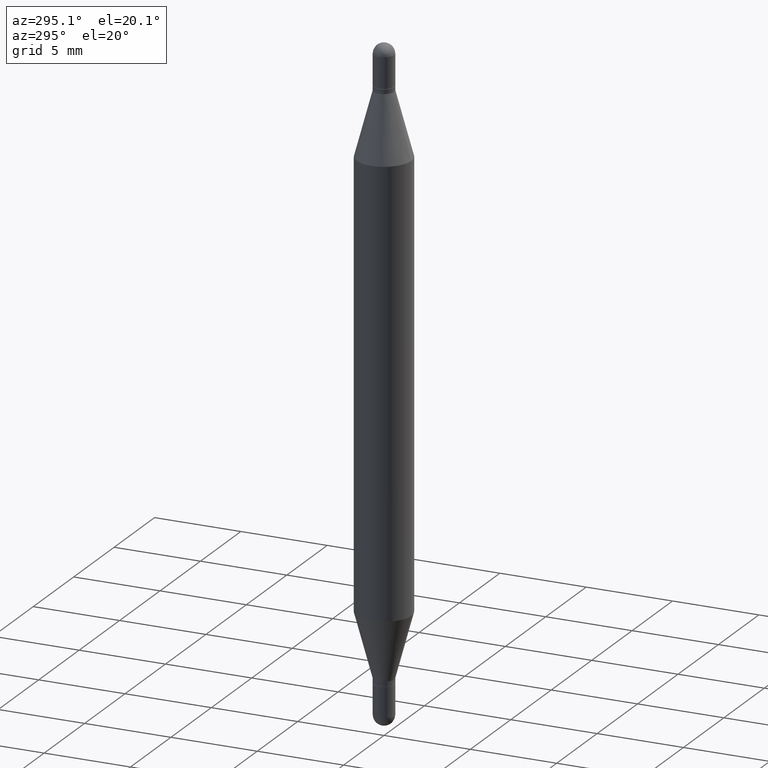
[diagram: clean part render]
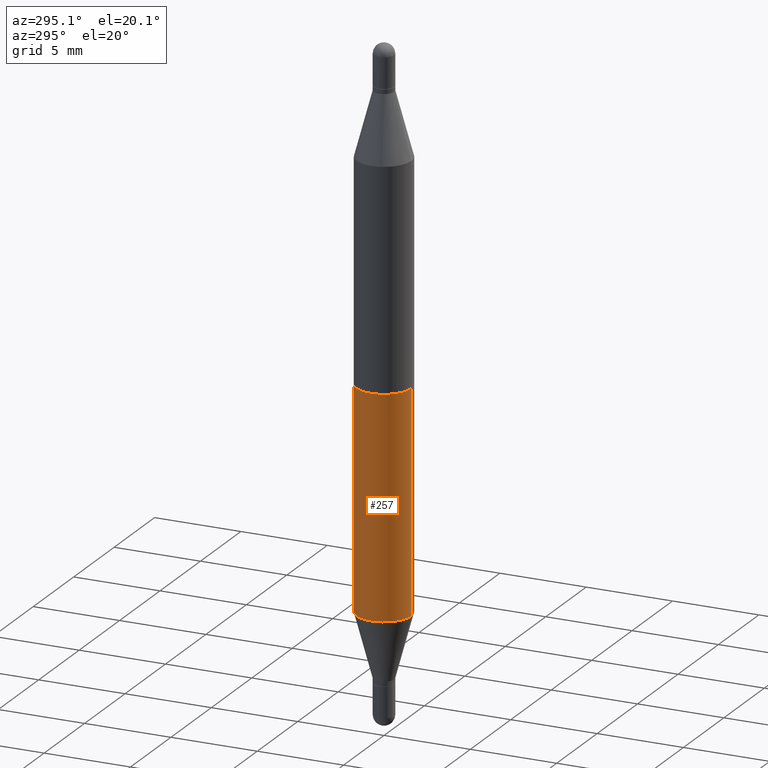
[diagram: same view with one face highlighted and labeled with its STEP entity id]
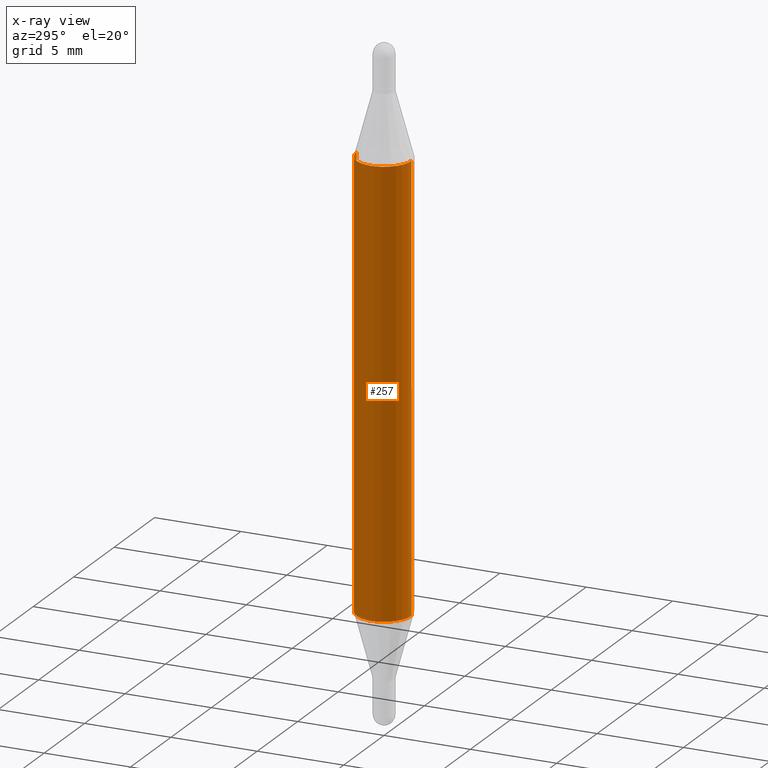
[diagram: x-ray of the same camera — body ghosted, the highlighted face saturated]
A machine part, auxiliary view. The second image highlights one B-rep face of the part: STEP entity #257.
The next image is the same camera in x-ray: the body ghosted, the highlighted face saturated — about 0% of this face is hidden behind the body in this view.
In plain terms, the highlighted cylindrical surface (edge-blend (fillet) strip) has radius 1.5875 mm, axis along (-0, -0, -1).
Its self-contained STEP definition (entity closure, byte-faithful):
#31 = VECTOR ( 'NONE', #339, 39.37007874015748143 ) ;
#46 = DIRECTION ( 'NONE',  ( -6.982962677686265922E-15, -1.000000000000000000, 4.370956789862821150E-15 ) ) ;
#52 = VERTEX_POINT ( 'NONE', #277 ) ;
#93 = VERTEX_POINT ( 'NONE', #431 ) ;
#129 = VECTOR ( 'NONE', #1052, 39.37007874015748143 ) ;
#167 = ORIENTED_EDGE ( 'NONE', *, *, #720, .T. ) ;
#197 = CARTESIAN_POINT ( 'NONE',  ( 3.057189282543616555E-29, -8.783037710192168733E-16, -0.2497365840355639799 ) ) ;
#210 = VERTEX_POINT ( 'NONE', #1117 ) ;
#215 = CIRCLE ( 'NONE', #357, 0.06250000000000000000 ) ;
#234 = AXIS2_PLACEMENT_3D ( 'NONE', #197, #704, #793 ) ;
#257 = ADVANCED_FACE ( 'NONE', ( #809 ), #467, .T. ) ;
#277 = CARTESIAN_POINT ( 'NONE',  ( -4.364351673553611010E-16, -0.06250000000000087430, -0.2497365840355637856 ) ) ;
#305 = CARTESIAN_POINT ( 'NONE',  ( 0.000000000000000000, -5.228321854365729194E-15, -1.499999999999999556 ) ) ;
#329 = ORIENTED_EDGE ( 'NONE', *, *, #415, .T. ) ;
#332 = EDGE_CURVE ( 'NONE', #52, #93, #579, .T. ) ;
#339 = DIRECTION ( 'NONE',  ( -2.445236134647148681E-29, -3.479281268092587357E-15, -1.000000000000000000 ) ) ;
#357 = AXIS2_PLACEMENT_3D ( 'NONE', #562, #485, #918 ) ;
#382 = EDGE_CURVE ( 'NONE', #210, #52, #893, .T. ) ;
#415 = EDGE_CURVE ( 'NONE', #879, #93, #215, .T. ) ;
#431 = CARTESIAN_POINT ( 'NONE',  ( -4.364351673553610517E-16, -0.06250000000000435763, -1.250263415964435243 ) ) ;
#467 = CYLINDRICAL_SURFACE ( 'NONE', #738, 0.06250000000000000000 ) ;
#469 = EDGE_LOOP ( 'NONE', ( #783, #167, #329, #1058 ) ) ;
#485 = DIRECTION ( 'NONE',  ( -2.445236134647148401E-29, 3.491814537728386085E-15, 1.000000000000000000 ) ) ;
#562 = CARTESIAN_POINT ( 'NONE',  ( 3.057189282543616555E-29, -4.365687971854568323E-15, -1.250263415964435687 ) ) ;
#579 = LINE ( 'NONE', #939, #31 ) ;
#616 = CARTESIAN_POINT ( 'NONE',  ( 4.287811248607206733E-16, 0.06249999999999477501, -1.499999999999999778 ) ) ;
#704 = DIRECTION ( 'NONE',  ( 2.445236134647148401E-29, 3.479281268092587751E-15, 1.000000000000000000 ) ) ;
#720 = EDGE_CURVE ( 'NONE', #210, #879, #888, .T. ) ;
#738 = AXIS2_PLACEMENT_3D ( 'NONE', #305, #825, #46 ) ;
#783 = ORIENTED_EDGE ( 'NONE', *, *, #382, .F. ) ;
#793 = DIRECTION ( 'NONE',  ( -6.982962677686265922E-15, -1.000000000000000000, 3.278217592397115862E-15 ) ) ;
#809 = FACE_OUTER_BOUND ( 'NONE', #469, .T. ) ;
#825 = DIRECTION ( 'NONE',  ( -2.445236134647148401E-29, -3.479281268092587751E-15, -1.000000000000000000 ) ) ;
#879 = VERTEX_POINT ( 'NONE', #1083 ) ;
#888 = LINE ( 'NONE', #616, #129 ) ;
#893 = CIRCLE ( 'NONE', #234, 0.06250000000000000000 ) ;
#918 = DIRECTION ( 'NONE',  ( -6.982962677686265922E-15, -1.000000000000000000, 4.370956789862821150E-15 ) ) ;
#939 = CARTESIAN_POINT ( 'NONE',  ( -4.364351673553916201E-16, -0.06250000000000521805, -1.499999999999999334 ) ) ;
#1052 = DIRECTION ( 'NONE',  ( -2.445236134647148681E-29, -3.479281268092587357E-15, -1.000000000000000000 ) ) ;
#1058 = ORIENTED_EDGE ( 'NONE', *, *, #332, .F. ) ;
#1083 = CARTESIAN_POINT ( 'NONE',  ( 4.287811248607390637E-16, 0.06249999999999563544, -1.250263415964435909 ) ) ;
#1117 = CARTESIAN_POINT ( 'NONE',  ( 4.287811248607511924E-16, 0.06249999999999911876, -0.2497365840355641742 ) ) ;